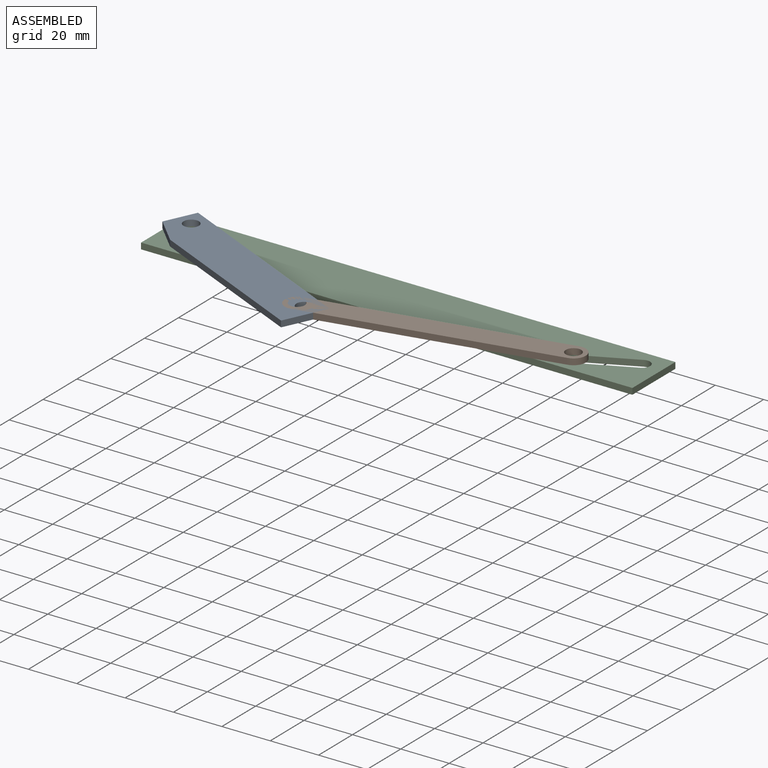
[diagram: assembled view]
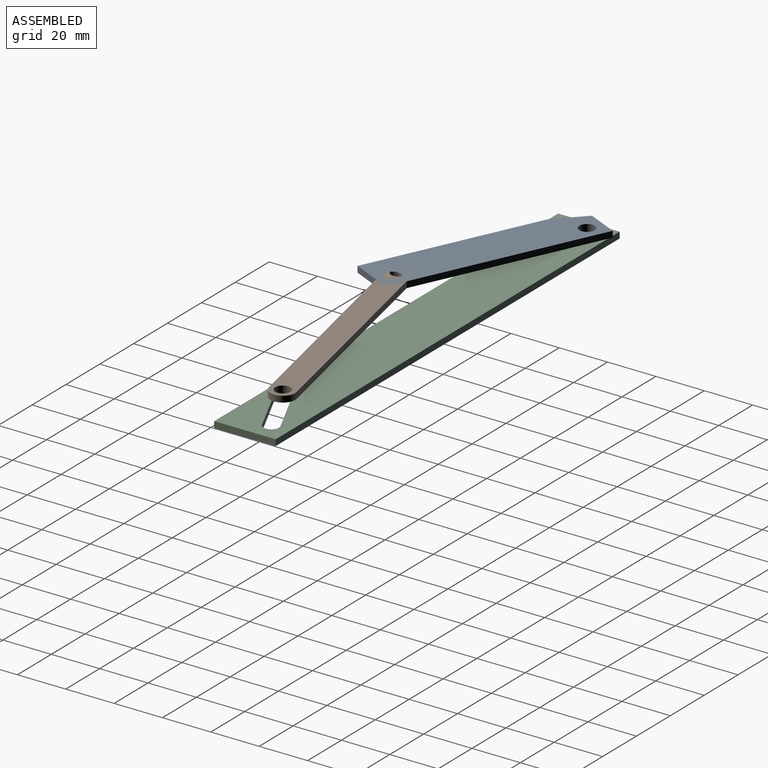
[diagram: assembled view, second angle]
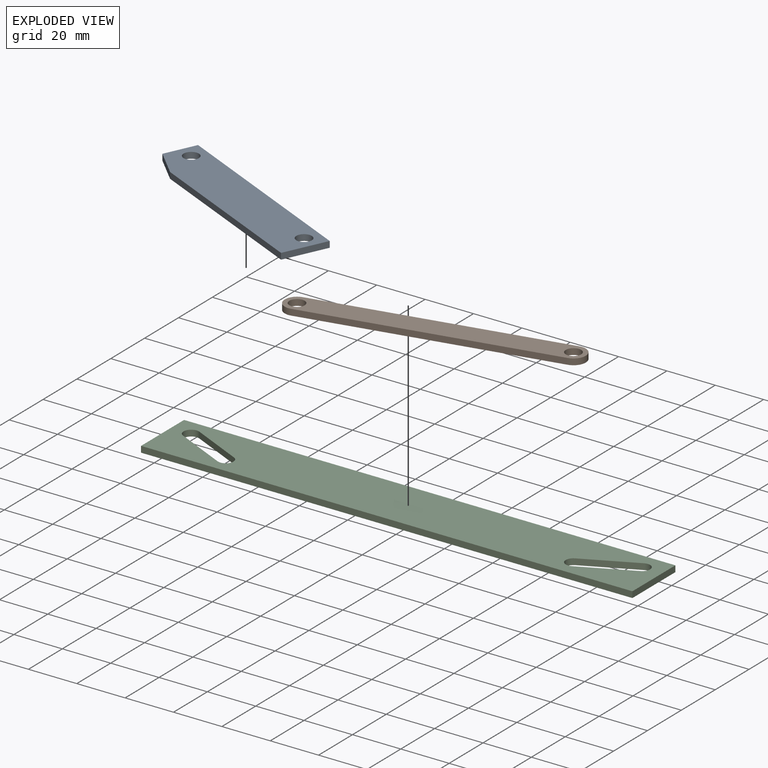
[diagram: exploded view]
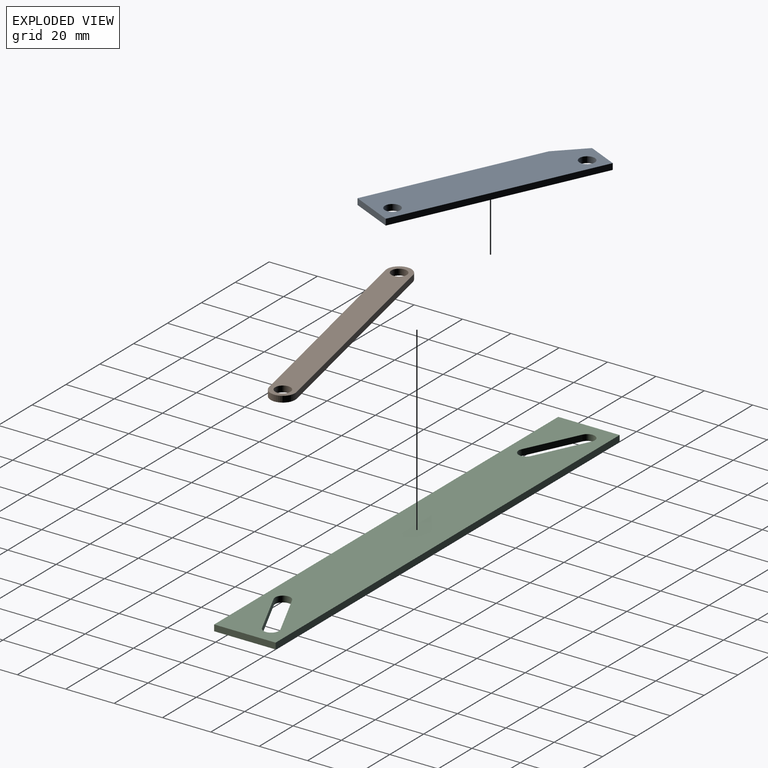
[diagram: exploded view, second angle]
ASSEMBLY  parts=3 mates=2
PART A: 9 faces, bbox 88.9x19.1x2.5 mm
  f0: plane 19.05x2.54mm, normal (1,0,0), area 48.4mm2, adj f1,f4,f6,f7
  f1: plane 88.9x2.54mm, normal (0,1,0), area 225.8mm2, adj f0,f2,f6,f7
  f2: plane 13.97x2.54mm, normal (-1,0,0), area 35.5mm2, adj f1,f6,f7,f8
  f3: cylinder r=3.17mm len=6.35mm, axis (0,0,-1), area 50.7mm2, adj f6,f7
  f4: plane 74.94x2.54mm, normal (0,-1,0), area 190.4mm2, adj f0,f6,f7,f8
  f5: cylinder r=3.17mm len=6.35mm, axis (0,0,-1), area 50.7mm2, adj f6,f7
  f6: plane 88.9x19.05mm, normal (0,0,1), area 1594.8mm2, adj f0,f1,f2,f3,f4,f5,f8
  f7: plane 88.9x19.05mm, normal (0,0,-1), area 1594.8mm2, adj f0,f1,f2,f3,f4,f5,f8
  f8: plane 13.96x5.08mm, normal (-0.34,-0.94,0), area 37.7mm2, adj f2,f4,f6,f7
PART B: 8 faces, bbox 111.8x10.2x2.5 mm
  f0: plane 101.6x2.54mm, normal (0,-1,0), area 258.1mm2, adj f1,f4,f6,f7
  f1: cylinder r=5.08mm len=10.16mm, axis (0,0,-1), area 40.5mm2, adj f0,f2,f6,f7
  f2: plane 101.6x2.54mm, normal (0,1,0), area 258.1mm2, adj f1,f4,f6,f7
  f3: cylinder r=3.17mm len=6.35mm, axis (0,0,-1), area 50.7mm2, adj f6,f7
  f4: cylinder r=5.08mm len=10.16mm, axis (0,0,-1), area 40.5mm2, adj f0,f2,f6,f7
  f5: cylinder r=3.17mm len=6.35mm, axis (0,0,-1), area 50.7mm2, adj f6,f7
  f6: plane 111.76x10.16mm, normal (0,0,1), area 1050mm2, adj f0,f1,f2,f3,f4,f5
  f7: plane 111.76x10.16mm, normal (0,0,-1), area 1050mm2, adj f0,f1,f2,f3,f4,f5
PART C: 14 faces, bbox 203.2x25.4x2.5 mm
  f0: cylinder r=3.17mm len=6.04mm, axis (0,0,-1), area 25.3mm2, adj f1,f11,f12,f13
  f1: plane 21.38x10.16mm, normal (0.43,-0.9,0), area 60.1mm2, adj f0,f2,f12,f13
  f2: cylinder r=3.17mm len=6.04mm, axis (0,0,-1), area 25.3mm2, adj f1,f11,f12,f13
  f3: cylinder r=3.17mm len=6.04mm, axis (0,0,-1), area 25.3mm2, adj f4,f9,f12,f13
  f4: plane 21.38x10.16mm, normal (-0.43,-0.9,0), area 60.1mm2, adj f3,f5,f12,f13
  f5: cylinder r=3.17mm len=6.04mm, axis (0,0,-1), area 25.3mm2, adj f4,f9,f12,f13
  f6: plane 25.4x2.54mm, normal (-1,0,0), area 64.5mm2, adj f7,f10,f12,f13
  f7: plane 203.2x2.54mm, normal (0,-1,0), area 516.1mm2, adj f6,f8,f12,f13
  f8: plane 25.4x2.54mm, normal (1,0,0), area 64.5mm2, adj f7,f10,f12,f13
  f9: plane 21.38x10.16mm, normal (0.43,0.9,0), area 60.1mm2, adj f3,f5,f12,f13
  f10: plane 203.2x2.54mm, normal (0,1,0), area 516.1mm2, adj f6,f8,f12,f13
  f11: plane 21.38x10.16mm, normal (-0.43,0.9,0), area 60.1mm2, adj f0,f2,f12,f13
  f12: plane 203.2x25.4mm, normal (0,0,1), area 4797.3mm2, adj f0,f1,f2,f3,f4,f5,f6,f7
  f13: plane 203.2x25.4mm, normal (0,0,-1), area 4797.3mm2, adj f0,f1,f2,f3,f4,f5,f6,f7
PLACE A rot(axis=(0,0,-1),24.9deg) t=(17.12,-2.6,0.09)mm
PLACE B rot(axis=(0,0,1),12.2deg) t=(99.45,-4.58,0.09)mm
PLACE C t=(-24.41,-1.47,-2.45)mm fixed
MATE revolute C.f3 <-> A.f3  axis (0,0,1) through (-16.11,16.31,0.09)mm
MATE revolute B.f1 <-> C.f0  axis (0,0,-1) through (149.1,6.15,0.09)mm
